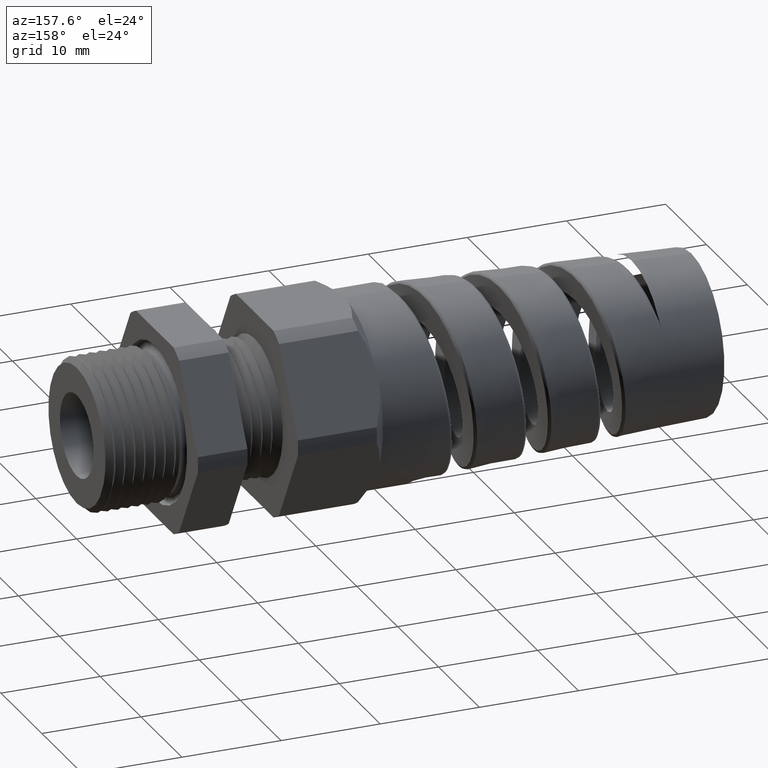
[diagram: clean part render]
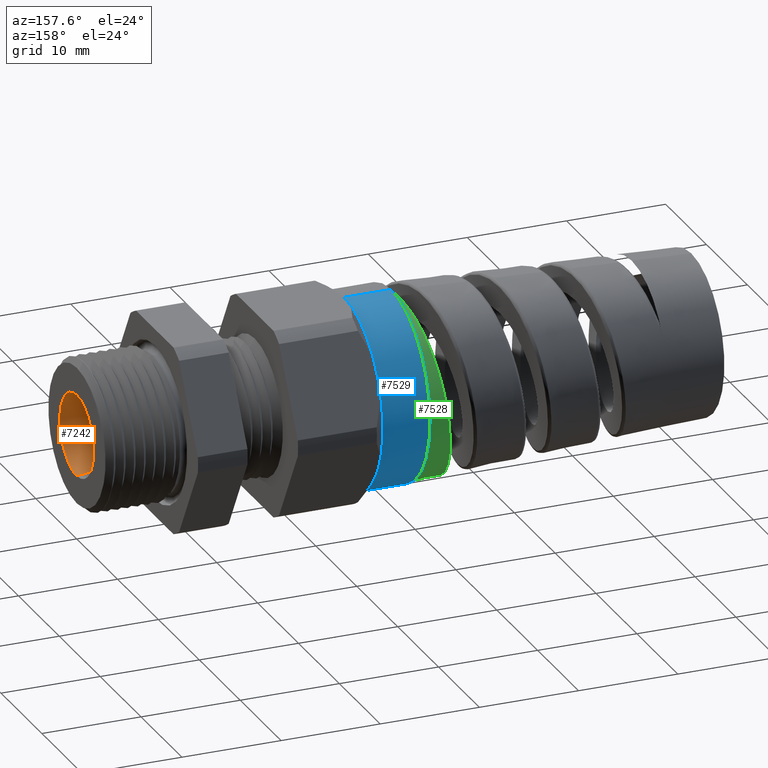
[diagram: same view with three faces highlighted in distinct colors, each labeled with its STEP entity id]
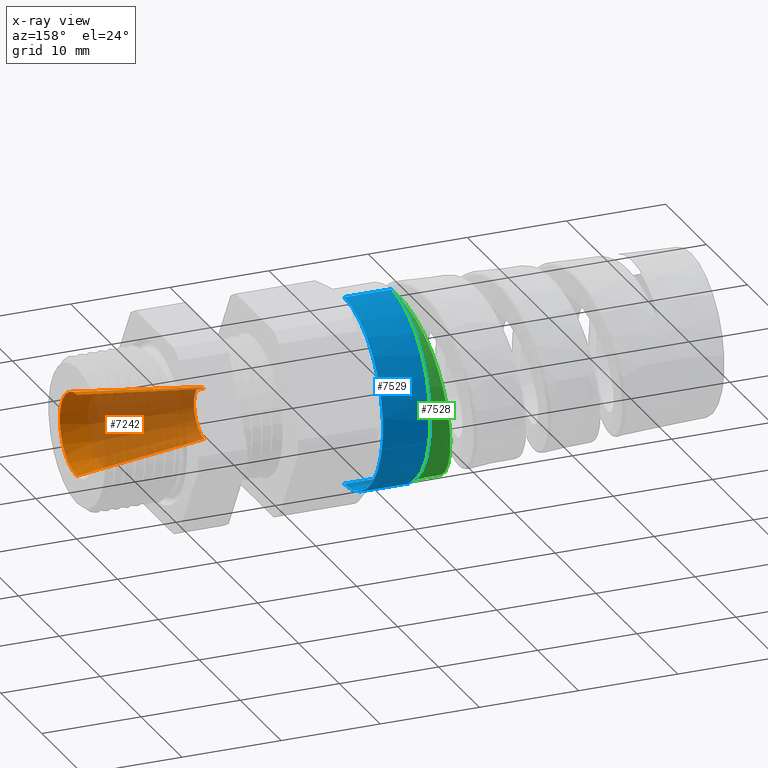
[diagram: x-ray of the same camera — body ghosted, the three highlighted faces saturated]
A machine part, auxiliary view with three faces highlighted in distinct colors.
The next image is the same camera in x-ray (body ghosted, the three faces saturated) — at least one of them is partly hidden behind the body in this view.
Their STEP definitions:

[orange] entity #7242 — the highlighted conical surface has half-angle 7 deg.
#2465 = CARTESIAN_POINT ( 'NONE',  ( 0.0000000000000000000, 0.0000000000000000000, -0.1622334030340121000 ) ) ;
#2466 = DIRECTION ( 'NONE',  ( 0.9925461516413227600, 1.492469013152954000E-017, 0.1218693434051409100 ) ) ;
#2467 = VECTOR ( 'NONE', #2466, 39.37007874015748900 ) ;
#2468 = CARTESIAN_POINT ( 'NONE',  ( -0.5068503937007873300, 1.224646799147353300E-017, 0.1000000000000000100 ) ) ;
#2469 = LINE ( 'NONE', #2468, #2467 ) ;
#2470 = DIRECTION ( 'NONE',  ( 0.0000000000000000000, 0.0000000000000000000, -1.000000000000000000 ) ) ;
#2471 = DIRECTION ( 'NONE',  ( 1.000000000000000000, 0.0000000000000000000, 0.0000000000000000000 ) ) ;
#2472 = CARTESIAN_POINT ( 'NONE',  ( 0.0000000000000000000, 0.0000000000000000000, 0.0000000000000000000 ) ) ;
#2473 = AXIS2_PLACEMENT_3D ( 'NONE', #2472, #2471, #2470 ) ;
#2474 = CIRCLE ( 'NONE', #2473, 0.1622334030340121000 ) ;
#2475 = CARTESIAN_POINT ( 'NONE',  ( 0.0000000000000000000, 1.986786177403854300E-017, 0.1622334030340121000 ) ) ;
#2476 = CARTESIAN_POINT ( 'NONE',  ( -0.5068503937007873300, 0.0000000000000000000, -0.1000000000000000100 ) ) ;
#2484 = DIRECTION ( 'NONE',  ( 0.9925461516413227600, 0.0000000000000000000, -0.1218693434051409100 ) ) ;
#2485 = VECTOR ( 'NONE', #2484, 39.37007874015748900 ) ;
#2486 = CARTESIAN_POINT ( 'NONE',  ( -0.5068503937007873300, 0.0000000000000000000, -0.1000000000000000100 ) ) ;
#2487 = LINE ( 'NONE', #2486, #2485 ) ;
#2526 = DIRECTION ( 'NONE',  ( 0.0000000000000000000, 0.0000000000000000000, -1.000000000000000000 ) ) ;
#2527 = DIRECTION ( 'NONE',  ( 1.000000000000000000, 0.0000000000000000000, 0.0000000000000000000 ) ) ;
#2528 = CARTESIAN_POINT ( 'NONE',  ( -0.5068503937007873300, 0.0000000000000000000, 0.0000000000000000000 ) ) ;
#2529 = AXIS2_PLACEMENT_3D ( 'NONE', #2528, #2527, #2526 ) ;
#2530 = CIRCLE ( 'NONE', #2529, 0.1000000000000000100 ) ;
#2531 = CARTESIAN_POINT ( 'NONE',  ( -0.5068503937007873300, 1.224646799147353300E-017, 0.1000000000000000100 ) ) ;
#2613 = DIRECTION ( 'NONE',  ( 0.0000000000000000000, 0.0000000000000000000, -1.000000000000000000 ) ) ;
#2614 = DIRECTION ( 'NONE',  ( 1.000000000000000000, 0.0000000000000000000, 0.0000000000000000000 ) ) ;
#2615 = AXIS2_PLACEMENT_3D ( 'NONE', #2618, #2614, #2613 ) ;
#2616 = CONICAL_SURFACE ( 'NONE', #2615, 0.1000000000000000100, 0.1221730476395964700 ) ;
#2618 = CARTESIAN_POINT ( 'NONE',  ( -0.5068503937007873300, 0.0000000000000000000, 0.0000000000000000000 ) ) ;
#2619 = FACE_OUTER_BOUND ( 'NONE', #7586, .T. ) ;
#7203 = EDGE_CURVE ( 'NONE', #7209, #7214, #2487, .T. ) ;
#7209 = VERTEX_POINT ( 'NONE', #2476 ) ;
#7210 = ORIENTED_EDGE ( 'NONE', *, *, #7213, .T. ) ;
#7211 = VERTEX_POINT ( 'NONE', #2475 ) ;
#7212 = EDGE_CURVE ( 'NONE', #7211, #7214, #2474, .T. ) ;
#7213 = EDGE_CURVE ( 'NONE', #7219, #7211, #2469, .T. ) ;
#7214 = VERTEX_POINT ( 'NONE', #2465 ) ;
#7215 = ORIENTED_EDGE ( 'NONE', *, *, #7212, .T. ) ;
#7216 = ORIENTED_EDGE ( 'NONE', *, *, #7203, .F. ) ;
#7219 = VERTEX_POINT ( 'NONE', #2531 ) ;
#7220 = ORIENTED_EDGE ( 'NONE', *, *, #7221, .F. ) ;
#7221 = EDGE_CURVE ( 'NONE', #7219, #7209, #2530, .T. ) ;
#7242 = ADVANCED_FACE ( 'NONE', ( #2619 ), #2616, .F. ) ;
#7586 = EDGE_LOOP ( 'NONE', ( #7220, #7210, #7215, #7216 ) ) ;

[blue] entity #7529 — the highlighted cylindrical surface (partial cylindrical patch) has radius 9.525 mm, axis along (1, 0, 0).
#1628 = AXIS2_PLACEMENT_3D ( 'NONE', #1877, #1883, #2129 ) ;
#1877 = CARTESIAN_POINT ( 'NONE',  ( -1.061259842519684900, 0.0000000000000000000, 0.0000000000000000000 ) ) ;
#1883 = DIRECTION ( 'NONE',  ( 1.000000000000000000, 0.0000000000000000000, 0.0000000000000000000 ) ) ;
#2129 = DIRECTION ( 'NONE',  ( 0.0000000000000000000, 0.0000000000000000000, -1.000000000000000000 ) ) ;
#2464 = CIRCLE ( 'NONE', #1628, 0.3750000000000001100 ) ;
#2477 = CARTESIAN_POINT ( 'NONE',  ( -1.061259842519684900, 0.0000000000000000000, -0.3750000000000001100 ) ) ;
#2483 = CARTESIAN_POINT ( 'NONE',  ( -1.061259842519684900, 0.0000000000000000000, 0.3749999999999999400 ) ) ;
#2533 = DIRECTION ( 'NONE',  ( 1.000000000000000000, 0.0000000000000000000, 0.0000000000000000000 ) ) ;
#2534 = VECTOR ( 'NONE', #2533, 39.37007874015748100 ) ;
#2535 = CARTESIAN_POINT ( 'NONE',  ( 0.09602717987635048200, 0.0000000000000000000, -0.3750000000000001100 ) ) ;
#2536 = LINE ( 'NONE', #2535, #2534 ) ;
#2537 = DIRECTION ( 'NONE',  ( 0.0000000000000000000, 0.0000000000000000000, -1.000000000000000000 ) ) ;
#2538 = DIRECTION ( 'NONE',  ( 1.000000000000000000, 0.0000000000000000000, 0.0000000000000000000 ) ) ;
#2539 = CARTESIAN_POINT ( 'NONE',  ( -1.061259842519684900, 0.0000000000000000000, 0.0000000000000000000 ) ) ;
#2540 = AXIS2_PLACEMENT_3D ( 'NONE', #2539, #2538, #2537 ) ;
#2541 = CIRCLE ( 'NONE', #2540, 0.3750000000000001100 ) ;
#2711 = DIRECTION ( 'NONE',  ( 0.0000000000000000000, 0.0000000000000000000, 1.000000000000000000 ) ) ;
#2712 = DIRECTION ( 'NONE',  ( -1.000000000000000000, 0.0000000000000000000, 0.0000000000000000000 ) ) ;
#2713 = CARTESIAN_POINT ( 'NONE',  ( -1.248060804240437700, 0.0000000000000000000, 0.0000000000000000000 ) ) ;
#2714 = AXIS2_PLACEMENT_3D ( 'NONE', #2713, #2712, #2711 ) ;
#2729 = CIRCLE ( 'NONE', #2714, 0.3749999999999999400 ) ;
#2733 = CARTESIAN_POINT ( 'NONE',  ( -1.248060804240437700, 4.592425496802575500E-017, 0.3749999999999999400 ) ) ;
#3926 = CARTESIAN_POINT ( 'NONE',  ( -1.061259842519684900, 0.3247595264191646700, 0.1875000000000001900 ) ) ;
#3927 = DIRECTION ( 'NONE',  ( 1.000000000000000000, 0.0000000000000000000, 0.0000000000000000000 ) ) ;
#3928 = VECTOR ( 'NONE', #3927, 39.37007874015748100 ) ;
#3947 = CARTESIAN_POINT ( 'NONE',  ( 0.09602717987635048200, 4.592425496802576100E-017, 0.3750000000000001100 ) ) ;
#3948 = LINE ( 'NONE', #3947, #3928 ) ;
#4000 = CARTESIAN_POINT ( 'NONE',  ( 0.09602717987635048200, 0.0000000000000000000, 0.0000000000000000000 ) ) ;
#4054 = DIRECTION ( 'NONE',  ( 0.0000000000000000000, 0.0000000000000000000, -1.000000000000000000 ) ) ;
#4055 = DIRECTION ( 'NONE',  ( 1.000000000000000000, 0.0000000000000000000, 0.0000000000000000000 ) ) ;
#4056 = AXIS2_PLACEMENT_3D ( 'NONE', #4000, #4055, #4054 ) ;
#4058 = CYLINDRICAL_SURFACE ( 'NONE', #4056, 0.3750000000000001100 ) ;
#4059 = FACE_OUTER_BOUND ( 'NONE', #7581, .T. ) ;
#4082 = CARTESIAN_POINT ( 'NONE',  ( -1.248060804240437700, 0.0000000000000000000, -0.3749999999999999400 ) ) ;
#4096 = DIRECTION ( 'NONE',  ( 0.0000000000000000000, 0.0000000000000000000, -1.000000000000000000 ) ) ;
#4097 = DIRECTION ( 'NONE',  ( 1.000000000000000000, 0.0000000000000000000, 0.0000000000000000000 ) ) ;
#4098 = CARTESIAN_POINT ( 'NONE',  ( -1.061259842519684900, 0.0000000000000000000, 0.0000000000000000000 ) ) ;
#4099 = AXIS2_PLACEMENT_3D ( 'NONE', #4098, #4097, #4096 ) ;
#4100 = CIRCLE ( 'NONE', #4099, 0.3750000000000001100 ) ;
#4101 = CARTESIAN_POINT ( 'NONE',  ( -1.061259842519684900, 0.3247595264191648300, -0.1875000000000001100 ) ) ;
#7204 = VERTEX_POINT ( 'NONE', #2483 ) ;
#7208 = VERTEX_POINT ( 'NONE', #2477 ) ;
#7217 = ORIENTED_EDGE ( 'NONE', *, *, #7218, .F. ) ;
#7218 = EDGE_CURVE ( 'NONE', #7208, #7580, #2464, .T. ) ;
#7227 = EDGE_CURVE ( 'NONE', #7580, #7500, #2541, .T. ) ;
#7229 = EDGE_CURVE ( 'NONE', #7556, #7208, #2536, .T. ) ;
#7264 = ORIENTED_EDGE ( 'NONE', *, *, #7499, .T. ) ;
#7279 = ORIENTED_EDGE ( 'NONE', *, *, #7229, .F. ) ;
#7290 = VERTEX_POINT ( 'NONE', #2733 ) ;
#7293 = ORIENTED_EDGE ( 'NONE', *, *, #7294, .F. ) ;
#7294 = EDGE_CURVE ( 'NONE', #7290, #7556, #2729, .T. ) ;
#7499 = EDGE_CURVE ( 'NONE', #7290, #7204, #3948, .T. ) ;
#7500 = VERTEX_POINT ( 'NONE', #3926 ) ;
#7503 = ORIENTED_EDGE ( 'NONE', *, *, #7579, .F. ) ;
#7506 = ORIENTED_EDGE ( 'NONE', *, *, #7227, .F. ) ;
#7529 = ADVANCED_FACE ( 'NONE', ( #4059 ), #4058, .T. ) ;
#7556 = VERTEX_POINT ( 'NONE', #4082 ) ;
#7579 = EDGE_CURVE ( 'NONE', #7500, #7204, #4100, .T. ) ;
#7580 = VERTEX_POINT ( 'NONE', #4101 ) ;
#7581 = EDGE_LOOP ( 'NONE', ( #7293, #7264, #7503, #7506, #7217, #7279 ) ) ;

[green] entity #7528 — the highlighted conical surface has half-angle 2.5 deg.
#2392 = DIRECTION ( 'NONE',  ( 0.9990482215818576900, 5.341834311772771000E-018, 0.04361938736533638900 ) ) ;
#2393 = VECTOR ( 'NONE', #2392, 39.37007874015748100 ) ;
#2394 = CARTESIAN_POINT ( 'NONE',  ( -1.139999999999999900, 4.592425496802573000E-017, 0.3749999999999998900 ) ) ;
#2395 = LINE ( 'NONE', #2394, #2393 ) ;
#2396 = CARTESIAN_POINT ( 'NONE',  ( -1.249796680272786000, -1.667041896009375000E-015, 0.3702061734110656000 ) ) ;
#2401 = CARTESIAN_POINT ( 'NONE',  ( -1.399838830094769900, -1.332349380199279500E-013, -0.3636551916738174900 ) ) ;
#2740 = CIRCLE ( 'NONE', #3793, 0.3702819633954101400 ) ;
#2894 = DIRECTION ( 'NONE',  ( 1.000000000000000000, 0.0000000000000000000, 0.0000000000000000000 ) ) ;
#2895 = DIRECTION ( 'NONE',  ( 0.0000000000000000000, 0.0000000000000000000, 1.000000000000000000 ) ) ;
#2939 = CARTESIAN_POINT ( 'NONE',  ( -1.248060804240437700, 0.0000000000000000000, 0.0000000000000000000 ) ) ;
#3793 = AXIS2_PLACEMENT_3D ( 'NONE', #2939, #2894, #2895 ) ;
#3919 = B_SPLINE_CURVE_WITH_KNOTS ( 'NONE', 3,
 ( #3997, #3996, #3995, #3994, #3993, #3992, #3991, #3990, #3989, #3988, #3987, #3986, #3985, #3984, #3983, #3982, #3981, #3980, #3979, #3978, #3977, #3976, #3975, #3974, #3973, #3972, #3971, #3970, #3969, #3968, #3967, #3966, #3965, #3964, #3963, #3962, #3961, #3960, #3959, #3958, #3957, #3956, #3955, #3954, #3953 ),
 .UNSPECIFIED., .F., .F.,
 ( 4, 2, 1, 2, 2, 2, 2, 2, 2, 2, 2, 2, 2, 2, 2, 2, 2, 2, 2, 2, 2, 2, 4 ),
 ( 0.1504981551506741100, 0.1514281983228587800, 0.1523582414950434300, 0.1532882846672281000, 0.1542183278394127800, 0.1560784141837821000, 0.1579385005281514500, 0.1597985868725207700, 0.1607286300447054500, 0.1616586732168901200, 0.1635187595612594400, 0.1653788459056287600, 0.1663088890778134400, 0.1672389322499981100, 0.1690990185943674300, 0.1709591049387367800, 0.1728191912831061300, 0.1737492344552908100, 0.1746792776274754800, 0.1765393639718448000, 0.1783994503162141500, 0.1793294934883988300, 0.1802595366605835000 ),
 .UNSPECIFIED. ) ;
#3953 = CARTESIAN_POINT ( 'NONE',  ( -1.249796680272786000, -1.667041896009375000E-015, 0.3702061734110656000 ) ) ;
#3954 = CARTESIAN_POINT ( 'NONE',  ( -1.251348048796083300, 0.01202589619947641600, 0.3701384391985397800 ) ) ;
#3955 = CARTESIAN_POINT ( 'NONE',  ( -1.252916101455375100, 0.02417661582441663800, 0.3694759297034828600 ) ) ;
#3956 = CARTESIAN_POINT ( 'NONE',  ( -1.256025590674070700, 0.04814643122507112500, 0.3669855953348982200 ) ) ;
#3957 = CARTESIAN_POINT ( 'NONE',  ( -1.257570900371320000, 0.05999578027051426900, 0.3651641523125560600 ) ) ;
#3958 = CARTESIAN_POINT ( 'NONE',  ( -1.262201456805573700, 0.09514343108061239200, 0.3580103297154417800 ) ) ;
#3959 = CARTESIAN_POINT ( 'NONE',  ( -1.265281152942032000, 0.1180451393628870700, 0.3510043742678322600 ) ) ;
#3960 = CARTESIAN_POINT ( 'NONE',  ( -1.271544801089886000, 0.1627319132121752300, 0.3323477231510937900 ) ) ;
#3961 = CARTESIAN_POINT ( 'NONE',  ( -1.274640881370356000, 0.1838935228346141900, 0.3209441252324929400 ) ) ;
#3962 = CARTESIAN_POINT ( 'NONE',  ( -1.279282098146956400, 0.2136733662220531000, 0.3009777580044112900 ) ) ;
#3963 = CARTESIAN_POINT ( 'NONE',  ( -1.280830683404076100, 0.2232851692880766500, 0.2938359528872640000 ) ) ;
#3964 = CARTESIAN_POINT ( 'NONE',  ( -1.283945130992701500, 0.2418653961038061700, 0.2785617887053717900 ) ) ;
#3965 = CARTESIAN_POINT ( 'NONE',  ( -1.285519111155293900, 0.2508758232001895300, 0.2703825272472462600 ) ) ;
#3966 = CARTESIAN_POINT ( 'NONE',  ( -1.290200581883497800, 0.2764099090499795900, 0.2448014290317219500 ) ) ;
#3967 = CARTESIAN_POINT ( 'NONE',  ( -1.293284463426398000, 0.2915649522741465800, 0.2263048030848600600 ) ) ;
#3968 = CARTESIAN_POINT ( 'NONE',  ( -1.299498888227465600, 0.3181928851041795900, 0.1864872188418628400 ) ) ;
#3969 = CARTESIAN_POINT ( 'NONE',  ( -1.302658899689024900, 0.3297250642071465900, 0.1649395440707771300 ) ) ;
#3970 = CARTESIAN_POINT ( 'NONE',  ( -1.308885745007973200, 0.3480897768590289800, 0.1206532694327309000 ) ) ;
#3971 = CARTESIAN_POINT ( 'NONE',  ( -1.311977327912393600, 0.3550583862548189500, 0.09778684651091015800 ) ) ;
#3972 = CARTESIAN_POINT ( 'NONE',  ( -1.316668118858798500, 0.3621468613147734200, 0.06239985835347412700 ) ) ;
#3973 = CARTESIAN_POINT ( 'NONE',  ( -1.318248333917628300, 0.3639468788694904500, 0.05036257088573307300 ) ) ;
#3974 = CARTESIAN_POINT ( 'NONE',  ( -1.321380025541869700, 0.3663285407341102000, 0.02639539558325076200 ) ) ;
#3975 = CARTESIAN_POINT ( 'NONE',  ( -1.322936808565205300, 0.3669239234573913900, 0.01442640633920711000 ) ) ;
#3976 = CARTESIAN_POINT ( 'NONE',  ( -1.327603317448643900, 0.3669618341605580500, -0.02143472118603593700 ) ) ;
#3977 = CARTESIAN_POINT ( 'NONE',  ( -1.330709161205049500, 0.3646729855531378700, -0.04528147169751097600 ) ) ;
#3978 = CARTESIAN_POINT ( 'NONE',  ( -1.337028305490178400, 0.3552697271319309500, -0.09283299472512214500 ) ) ;
#3979 = CARTESIAN_POINT ( 'NONE',  ( -1.340139215169813300, 0.3483029998878601200, -0.1157760902855309300 ) ) ;
#3980 = CARTESIAN_POINT ( 'NONE',  ( -1.344816496347431800, 0.3346114481041036500, -0.1489165610846907300 ) ) ;
#3981 = CARTESIAN_POINT ( 'NONE',  ( -1.346377510910820000, 0.3295026636167660000, -0.1597532679330475000 ) ) ;
#3982 = CARTESIAN_POINT ( 'NONE',  ( -1.349518636456872100, 0.3181720018976900200, -0.1809953621066132100 ) ) ;
#3983 = CARTESIAN_POINT ( 'NONE',  ( -1.351105067932039300, 0.3119188293492558000, -0.1914382829689502100 ) ) ;
#3984 = CARTESIAN_POINT ( 'NONE',  ( -1.355817659759098300, 0.2918622574288911000, -0.2214550120099760000 ) ) ;
#3985 = CARTESIAN_POINT ( 'NONE',  ( -1.358925688559573500, 0.2766890827595539500, -0.2399271437675020700 ) ) ;
#3986 = CARTESIAN_POINT ( 'NONE',  ( -1.365195112691833800, 0.2427893264116264800, -0.2738160639806453400 ) ) ;
#3987 = CARTESIAN_POINT ( 'NONE',  ( -1.368378248943797900, 0.2238820384096561500, -0.2893033017870212900 ) ) ;
#3988 = CARTESIAN_POINT ( 'NONE',  ( -1.374648226971193900, 0.1840112537879497200, -0.3158475033986630800 ) ) ;
#3989 = CARTESIAN_POINT ( 'NONE',  ( -1.377763826278260300, 0.1629087040539933500, -0.3270909982098970700 ) ) ;
#3990 = CARTESIAN_POINT ( 'NONE',  ( -1.382498536776481300, 0.1294796545506254300, -0.3408467681102728100 ) ) ;
#3991 = CARTESIAN_POINT ( 'NONE',  ( -1.384090535930536000, 0.1180118203536320400, -0.3449106858004503700 ) ) ;
#3992 = CARTESIAN_POINT ( 'NONE',  ( -1.387241790251336500, 0.09497938000316363800, -0.3518079728497020600 ) ) ;
#3993 = CARTESIAN_POINT ( 'NONE',  ( -1.390377427931231800, 0.07173120479410480300, -0.3575304285762393500 ) ) ;
#3994 = CARTESIAN_POINT ( 'NONE',  ( -1.393512794024574000, 0.04806293436784850300, -0.3609429546254559500 ) ) ;
#3995 = CARTESIAN_POINT ( 'NONE',  ( -1.396662462368121200, 0.02418412294133268800, -0.3631871630432377800 ) ) ;
#3996 = CARTESIAN_POINT ( 'NONE',  ( -1.398250708407410100, 0.01209172802958076600, -0.3637245305641454400 ) ) ;
#3997 = CARTESIAN_POINT ( 'NONE',  ( -1.399838830094769900, -1.332349380199279500E-013, -0.3636551916738174900 ) ) ;
#3998 = DIRECTION ( 'NONE',  ( 1.000000000000000000, 0.0000000000000000000, 0.0000000000000000000 ) ) ;
#3999 = AXIS2_PLACEMENT_3D ( 'NONE', #4006, #3998, #4060 ) ;
#4001 = CONICAL_SURFACE ( 'NONE', #3999, 0.3749999999999998900, 0.04363323129985862600 ) ;
#4002 = FACE_OUTER_BOUND ( 'NONE', #7521, .T. ) ;
#4006 = CARTESIAN_POINT ( 'NONE',  ( -1.139999999999999900, 0.0000000000000000000, 0.0000000000000000000 ) ) ;
#4030 = LINE ( 'NONE', #4092, #4091 ) ;
#4060 = DIRECTION ( 'NONE',  ( 0.0000000000000000000, 0.0000000000000000000, -1.000000000000000000 ) ) ;
#4061 = CARTESIAN_POINT ( 'NONE',  ( -1.248060804240437700, 4.534646212541864600E-017, 0.3702819633954102000 ) ) ;
#4083 = CARTESIAN_POINT ( 'NONE',  ( -1.248060804240437700, 0.0000000000000000000, -0.3702819633954102000 ) ) ;
#4090 = DIRECTION ( 'NONE',  ( 0.9990482215818576900, 0.0000000000000000000, -0.04361938736533638900 ) ) ;
#4091 = VECTOR ( 'NONE', #4090, 39.37007874015748100 ) ;
#4092 = CARTESIAN_POINT ( 'NONE',  ( -1.139999999999999900, 0.0000000000000000000, -0.3749999999999998900 ) ) ;
#7190 = VERTEX_POINT ( 'NONE', #2401 ) ;
#7191 = ORIENTED_EDGE ( 'NONE', *, *, #7195, .T. ) ;
#7192 = VERTEX_POINT ( 'NONE', #2396 ) ;
#7195 = EDGE_CURVE ( 'NONE', #7192, #7566, #2395, .T. ) ;
#7507 = EDGE_CURVE ( 'NONE', #7190, #7192, #3919, .T. ) ;
#7517 = ORIENTED_EDGE ( 'NONE', *, *, #7507, .T. ) ;
#7521 = EDGE_LOOP ( 'NONE', ( #7517, #7191, #7561, #7552 ) ) ;
#7528 = ADVANCED_FACE ( 'NONE', ( #4002 ), #4001, .T. ) ;
#7545 = EDGE_CURVE ( 'NONE', #7190, #7553, #4030, .T. ) ;
#7552 = ORIENTED_EDGE ( 'NONE', *, *, #7545, .F. ) ;
#7553 = VERTEX_POINT ( 'NONE', #4083 ) ;
#7561 = ORIENTED_EDGE ( 'NONE', *, *, #7567, .F. ) ;
#7566 = VERTEX_POINT ( 'NONE', #4061 ) ;
#7567 = EDGE_CURVE ( 'NONE', #7553, #7566, #2740, .T. ) ;